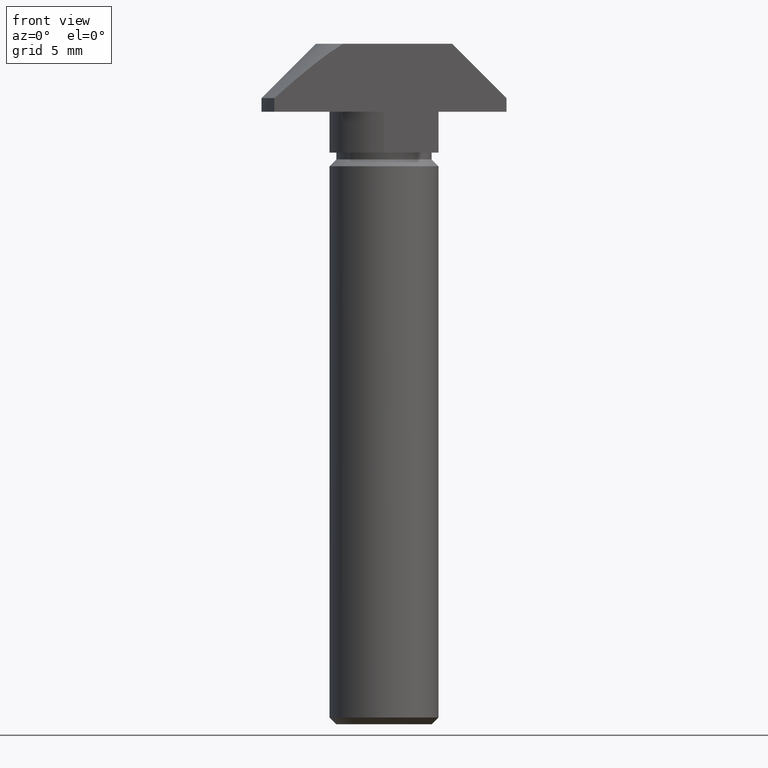
[diagram: clean part render]
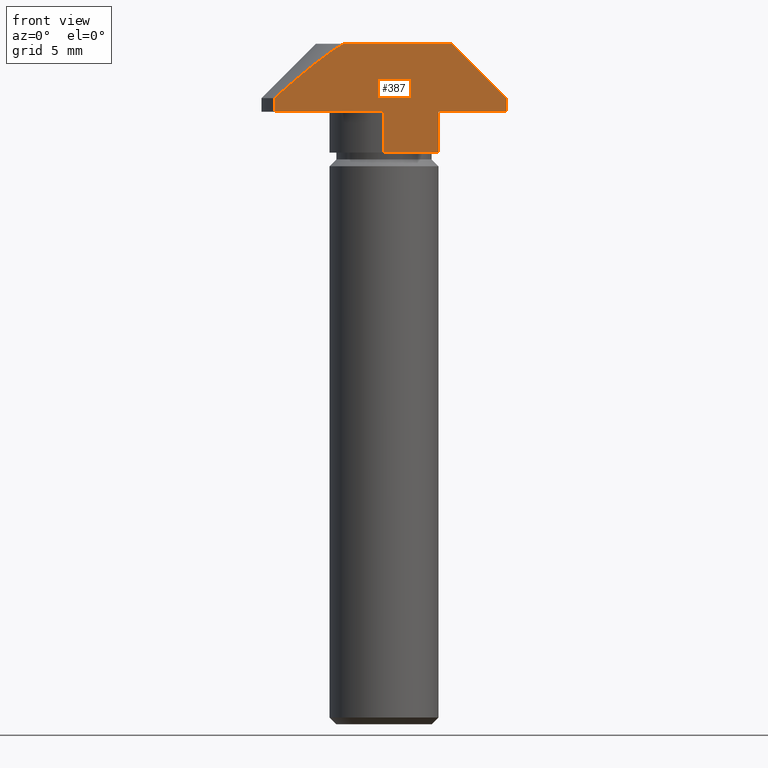
[diagram: same view with one face highlighted and labeled with its STEP entity id]
A machine part, front view. The second image highlights one B-rep face of the part: STEP entity #387.
In plain terms, the highlighted planar face has unit normal (0, -1, 0).
Its self-contained STEP definition (entity closure, byte-faithful):
#16=(
BOUNDED_CURVE()
B_SPLINE_CURVE(2,(#629,#630,#631),.UNSPECIFIED.,.F.,.F.)
B_SPLINE_CURVE_WITH_KNOTS((3,3),(0.,0.645810133031388),.UNSPECIFIED.)
CURVE()
GEOMETRIC_REPRESENTATION_ITEM()
RATIONAL_B_SPLINE_CURVE((1.,1.07257323111155,1.))
REPRESENTATION_ITEM('')
);
#21=LINE('',#572,#55);
#23=LINE('',#578,#57);
#28=LINE('',#590,#62);
#29=LINE('',#593,#63);
#34=LINE('',#606,#68);
#38=LINE('',#623,#72);
#42=LINE('',#638,#76);
#44=LINE('',#642,#78);
#49=LINE('',#652,#83);
#55=VECTOR('',#464,3.);
#57=VECTOR('',#468,3.);
#62=VECTOR('',#481,3.99999999999999);
#63=VECTOR('',#484,8.06225774829855);
#68=VECTOR('',#495,5.00000000000001);
#72=VECTOR('',#509,1.);
#76=VECTOR('',#521,1.);
#78=VECTOR('',#525,5.65685424949238);
#83=VECTOR('',#536,8.);
#95=PLANE('',#427);
#129=FACE_OUTER_BOUND('',#157,.T.);
#157=EDGE_LOOP('',(#337,#338,#339,#340,#341,#342,#343,#344,#345,#346));
#184=VERTEX_POINT('',#568);
#185=VERTEX_POINT('',#570);
#186=VERTEX_POINT('',#574);
#188=VERTEX_POINT('',#577);
#192=VERTEX_POINT('',#592);
#197=VERTEX_POINT('',#604);
#202=VERTEX_POINT('',#622);
#204=VERTEX_POINT('',#628);
#206=VERTEX_POINT('',#636);
#207=VERTEX_POINT('',#640);
#221=EDGE_CURVE('',#184,#185,#21,.T.);
#223=EDGE_CURVE('',#186,#188,#23,.T.);
#230=EDGE_CURVE('',#188,#185,#28,.T.);
#231=EDGE_CURVE('',#192,#184,#29,.T.);
#238=EDGE_CURVE('',#186,#197,#34,.T.);
#245=EDGE_CURVE('',#202,#192,#38,.T.);
#248=EDGE_CURVE('',#204,#202,#16,.T.);
#252=EDGE_CURVE('',#197,#206,#42,.T.);
#254=EDGE_CURVE('',#206,#207,#44,.T.);
#259=EDGE_CURVE('',#207,#204,#49,.T.);
#337=ORIENTED_EDGE('',*,*,#245,.T.);
#338=ORIENTED_EDGE('',*,*,#231,.T.);
#339=ORIENTED_EDGE('',*,*,#221,.T.);
#340=ORIENTED_EDGE('',*,*,#230,.F.);
#341=ORIENTED_EDGE('',*,*,#223,.F.);
#342=ORIENTED_EDGE('',*,*,#238,.T.);
#343=ORIENTED_EDGE('',*,*,#252,.T.);
#344=ORIENTED_EDGE('',*,*,#254,.T.);
#345=ORIENTED_EDGE('',*,*,#259,.T.);
#346=ORIENTED_EDGE('',*,*,#248,.T.);
#387=ADVANCED_FACE('',(#129),#95,.T.);
#427=AXIS2_PLACEMENT_3D('',#651,#534,#535);
#464=DIRECTION('',(0.,0.,-1.));
#468=DIRECTION('',(0.,0.,-1.));
#481=DIRECTION('',(-1.,3.06161699786838E-16,0.));
#484=DIRECTION('',(1.,0.,0.));
#495=DIRECTION('',(1.,0.,0.));
#509=DIRECTION('',(0.,0.,-1.));
#521=DIRECTION('',(0.,0.,1.));
#525=DIRECTION('',(-0.707106781186547,0.,0.707106781186548));
#534=DIRECTION('center_axis',(0.,-1.,0.));
#535=DIRECTION('ref_axis',(0.,0.,-1.));
#536=DIRECTION('',(-1.,0.,2.04289535270664E-17));
#568=CARTESIAN_POINT('',(0.,-4.00000000000001,-5.));
#570=CARTESIAN_POINT('',(0.,-4.00000000000001,-8.));
#572=CARTESIAN_POINT('',(0.,-4.00000000000001,-5.));
#574=CARTESIAN_POINT('',(3.99999999999999,-4.00000000000001,-5.));
#577=CARTESIAN_POINT('',(3.99999999999999,-4.00000000000001,-8.));
#578=CARTESIAN_POINT('',(3.99999999999999,-4.00000000000001,-5.));
#590=CARTESIAN_POINT('',(0.,-4.00000000000001,-8.));
#592=CARTESIAN_POINT('',(-8.06225774829855,-4.,-5.));
#593=CARTESIAN_POINT('',(-9.,-4.,-5.));
#604=CARTESIAN_POINT('',(9.,-4.,-5.));
#606=CARTESIAN_POINT('',(-9.,-4.,-5.));
#622=CARTESIAN_POINT('',(-8.06225774829855,-4.,-4.));
#623=CARTESIAN_POINT('',(-8.06225774829855,-4.,-4.5));
#628=CARTESIAN_POINT('',(-3.,-4.,0.));
#629=CARTESIAN_POINT('Ctrl Pts',(-3.,-4.,2.77555756156289E-16));
#630=CARTESIAN_POINT('Ctrl Pts',(-4.80794919582092,-4.,-1.08476951749255));
#631=CARTESIAN_POINT('Ctrl Pts',(-8.06225774829855,-4.,-4.));
#636=CARTESIAN_POINT('',(9.,-4.,-4.));
#638=CARTESIAN_POINT('',(9.,-4.,-5.));
#640=CARTESIAN_POINT('',(5.,-4.,0.));
#642=CARTESIAN_POINT('',(9.,-4.,-4.));
#651=CARTESIAN_POINT('Origin',(0.,-4.,-2.94399659137253));
#652=CARTESIAN_POINT('',(5.,-4.,1.96261524244674E-16));